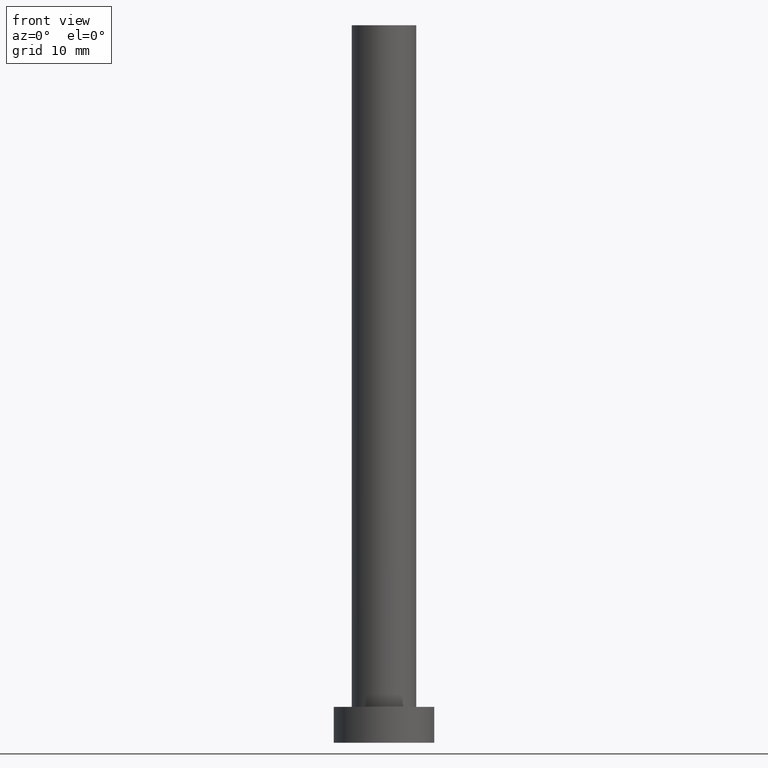
[diagram: clean part render]
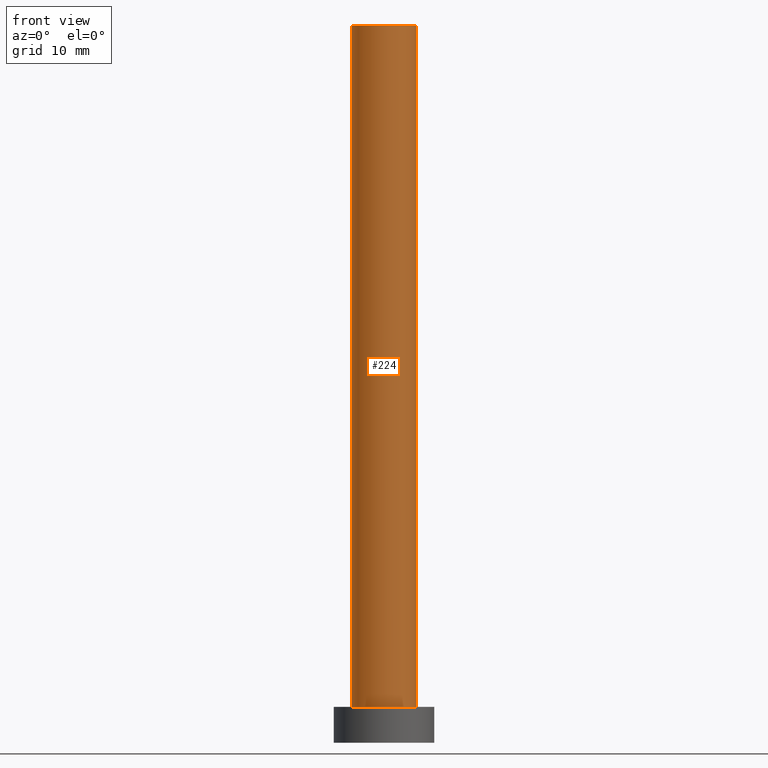
[diagram: same view with one face highlighted and labeled with its STEP entity id]
A machine part, front view. The second image highlights one B-rep face of the part: STEP entity #224.
In plain terms, the highlighted cylindrical surface (edge-blend (fillet) strip) has radius 4.5 mm, axis along (-0, -0, -1).
Its self-contained STEP definition (entity closure, byte-faithful):
#8 = CARTESIAN_POINT ( 'NONE',  ( 4.500000000000000000, 5.510910596163088569E-16, 5.000000000000000000 ) ) ;
#9 = CARTESIAN_POINT ( 'NONE',  ( -4.500000000000000000, 0.000000000000000000, 100.0000000000000000 ) ) ;
#21 = ORIENTED_EDGE ( 'NONE', *, *, #246, .T. ) ;
#27 = EDGE_CURVE ( 'NONE', #161, #155, #117, .T. ) ;
#28 = LINE ( 'NONE', #9, #219 ) ;
#37 = EDGE_LOOP ( 'NONE', ( #58, #215, #170, #21 ) ) ;
#56 = AXIS2_PLACEMENT_3D ( 'NONE', #153, #73, #109 ) ;
#58 = ORIENTED_EDGE ( 'NONE', *, *, #214, .F. ) ;
#69 = CIRCLE ( 'NONE', #56, 4.500000000000000000 ) ;
#72 = CARTESIAN_POINT ( 'NONE',  ( 4.500000000000000000, 5.510910596163088569E-16, 100.0000000000000000 ) ) ;
#73 = DIRECTION ( 'NONE',  ( 0.000000000000000000, 0.000000000000000000, 1.000000000000000000 ) ) ;
#91 = AXIS2_PLACEMENT_3D ( 'NONE', #233, #156, #195 ) ;
#109 = DIRECTION ( 'NONE',  ( 1.000000000000000000, 0.000000000000000000, 0.000000000000000000 ) ) ;
#111 = AXIS2_PLACEMENT_3D ( 'NONE', #187, #174, #243 ) ;
#117 = CIRCLE ( 'NONE', #91, 4.500000000000000000 ) ;
#119 = VERTEX_POINT ( 'NONE', #186 ) ;
#120 = VERTEX_POINT ( 'NONE', #8 ) ;
#126 = CARTESIAN_POINT ( 'NONE',  ( 4.500000000000000000, 5.510910596163088569E-16, 100.0000000000000000 ) ) ;
#128 = DIRECTION ( 'NONE',  ( -0.000000000000000000, -0.000000000000000000, -1.000000000000000000 ) ) ;
#148 = CARTESIAN_POINT ( 'NONE',  ( -4.500000000000000000, 0.000000000000000000, 100.0000000000000000 ) ) ;
#150 = FACE_OUTER_BOUND ( 'NONE', #37, .T. ) ;
#153 = CARTESIAN_POINT ( 'NONE',  ( 0.000000000000000000, 0.000000000000000000, 5.000000000000000000 ) ) ;
#155 = VERTEX_POINT ( 'NONE', #126 ) ;
#156 = DIRECTION ( 'NONE',  ( 0.000000000000000000, 0.000000000000000000, 1.000000000000000000 ) ) ;
#161 = VERTEX_POINT ( 'NONE', #148 ) ;
#167 = EDGE_CURVE ( 'NONE', #161, #119, #28, .T. ) ;
#170 = ORIENTED_EDGE ( 'NONE', *, *, #167, .T. ) ;
#172 = LINE ( 'NONE', #72, #179 ) ;
#174 = DIRECTION ( 'NONE',  ( -0.000000000000000000, -0.000000000000000000, -1.000000000000000000 ) ) ;
#179 = VECTOR ( 'NONE', #245, 1000.000000000000000 ) ;
#186 = CARTESIAN_POINT ( 'NONE',  ( -4.500000000000000000, 0.000000000000000000, 5.000000000000000000 ) ) ;
#187 = CARTESIAN_POINT ( 'NONE',  ( 0.000000000000000000, 0.000000000000000000, 100.0000000000000000 ) ) ;
#195 = DIRECTION ( 'NONE',  ( 1.000000000000000000, 0.000000000000000000, 0.000000000000000000 ) ) ;
#209 = CYLINDRICAL_SURFACE ( 'NONE', #111, 4.500000000000000000 ) ;
#214 = EDGE_CURVE ( 'NONE', #155, #120, #172, .T. ) ;
#215 = ORIENTED_EDGE ( 'NONE', *, *, #27, .F. ) ;
#219 = VECTOR ( 'NONE', #128, 1000.000000000000000 ) ;
#224 = ADVANCED_FACE ( 'NONE', ( #150 ), #209, .T. ) ;
#233 = CARTESIAN_POINT ( 'NONE',  ( 0.000000000000000000, 0.000000000000000000, 100.0000000000000000 ) ) ;
#243 = DIRECTION ( 'NONE',  ( -1.000000000000000000, 0.000000000000000000, 0.000000000000000000 ) ) ;
#245 = DIRECTION ( 'NONE',  ( -0.000000000000000000, -0.000000000000000000, -1.000000000000000000 ) ) ;
#246 = EDGE_CURVE ( 'NONE', #119, #120, #69, .T. ) ;